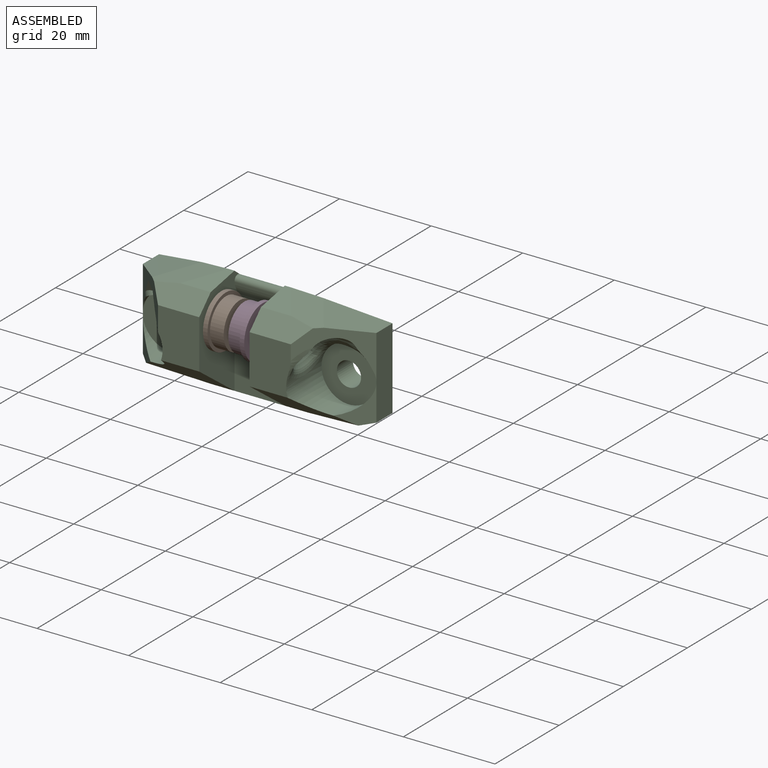
[diagram: assembled view]
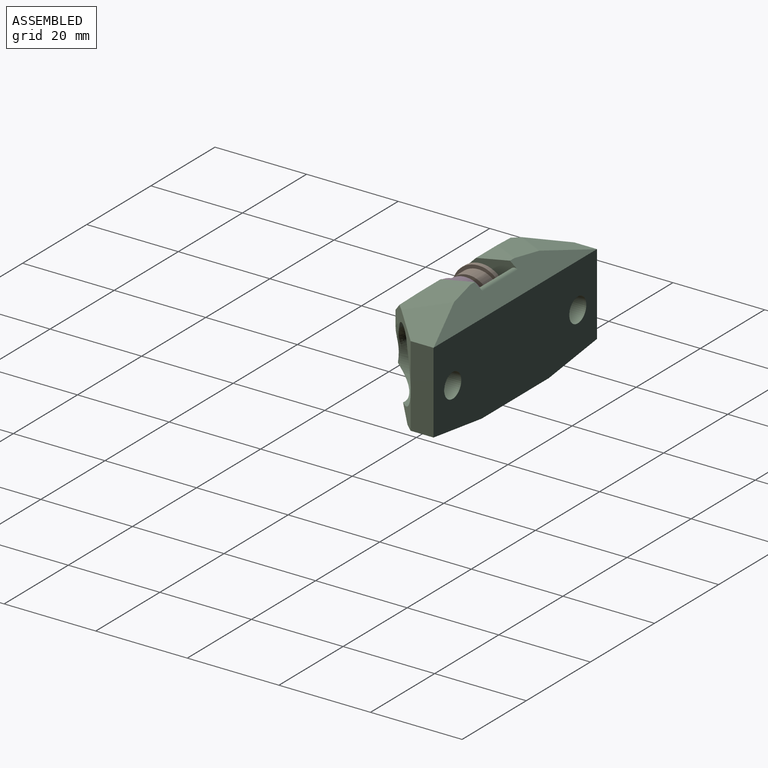
[diagram: assembled view, second angle]
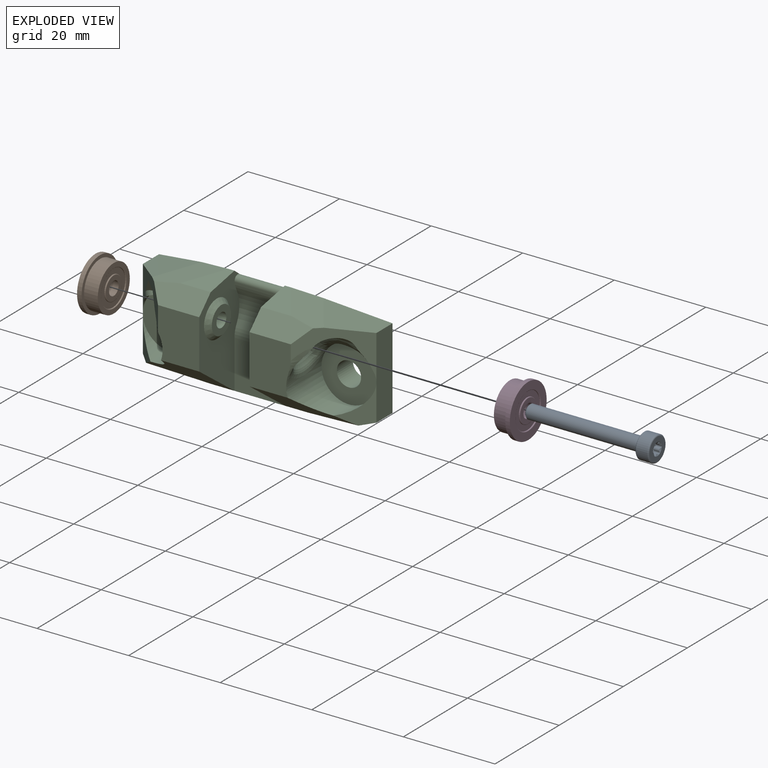
[diagram: exploded view]
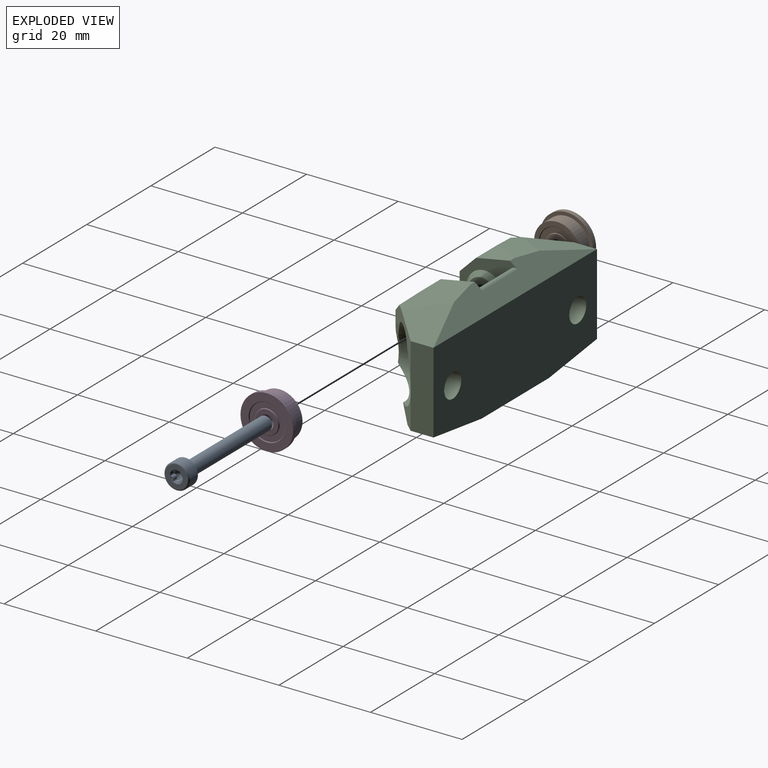
[diagram: exploded view, second angle]
ASSEMBLY  parts=4 mates=3
PART A: 30 faces, bbox 28x6x6 mm
  f0: plane 5.07x5.07mm, normal (1,0,0), area 10mm2, adj f1,f26
  f1: cone r=2.75mm half-angle=45deg, axis (-1,0,0), area 5mm2, adj f0,f2
  f2: cylinder r=2.75mm len=5.5mm, axis (1,0,0), area 42.9mm2, adj f1,f3
  f3: torus R=2.45mm, axis (1,0,0), area 7.8mm2, adj f2,f4
  f4: plane 4.9x4.9mm, normal (-1,0,0), area 12.7mm2, adj f3,f5,f6,f7,f8,f9,f10
  f5: cone r=1.4mm half-angle=60deg, axis (-1,0,0), area 0.3mm2, adj f4,f12,f14,f23
  f6: cone r=1.4mm half-angle=60deg, axis (-1,0,0), area 0.3mm2, adj f4,f13,f14,f16
  f7: cone r=1.4mm half-angle=60deg, axis (-1,0,0), area 0.3mm2, adj f4,f15,f16,f18
  f8: cone r=1.4mm half-angle=60deg, axis (-1,0,0), area 0.3mm2, adj f4,f17,f18,f20
  f9: cone r=1.4mm half-angle=60deg, axis (-1,0,0), area 0.3mm2, adj f4,f19,f20,f22
  f10: cone r=1.4mm half-angle=60deg, axis (-1,0,0), area 0.3mm2, adj f4,f21,f22,f23
  f11: cone r=1.4mm half-angle=60deg, axis (-1,0,0), area 5.2mm2, adj f12,f13,f14,f15,f16,f17,f18,f19
  f12: cylinder r=0.49mm len=1.39mm, axis (-1,0,0), area 1mm2, adj f5,f11,f14,f23
  f13: cylinder r=0.49mm len=1.39mm, axis (-1,0,0), area 1mm2, adj f6,f11,f14,f16
  f14: cylinder r=0.28mm len=1.38mm, axis (-1,0,0), area 1mm2, adj f5,f6,f11,f12,f13
  f15: cylinder r=0.49mm len=1.39mm, axis (-1,0,0), area 1mm2, adj f7,f11,f16,f18
  f16: cylinder r=0.28mm len=1.38mm, axis (-1,0,0), area 1mm2, adj f6,f7,f11,f13,f15
  f17: cylinder r=0.49mm len=1.39mm, axis (-1,0,0), area 1mm2, adj f8,f11,f18,f20
  f18: cylinder r=0.28mm len=1.38mm, axis (-1,0,0), area 1mm2, adj f7,f8,f11,f15,f17
  f19: cylinder r=0.49mm len=1.39mm, axis (-1,0,0), area 1mm2, adj f9,f11,f20,f22
  f20: cylinder r=0.28mm len=1.38mm, axis (-1,0,0), area 1mm2, adj f8,f9,f11,f17,f19
  f21: cylinder r=0.49mm len=1.39mm, axis (-1,0,0), area 1mm2, adj f10,f11,f22,f23
  f22: cylinder r=0.28mm len=1.38mm, axis (-1,0,0), area 1mm2, adj f9,f10,f11,f19,f21
  f23: cylinder r=0.28mm len=1.38mm, axis (-1,0,0), area 1mm2, adj f5,f10,f11,f12,f21
  f24: torus R=1.6mm, axis (1,0,0), area 0.4mm2, adj f25,f29
  f25: cone r=1.51mm half-angle=26deg, axis (-1,0,0), area 4.6mm2, adj f24,f26
  f26: torus R=1.8mm, axis (1,0,0), area 1.2mm2, adj f0,f25
  f27: plane 2.39x2.39mm, normal (1,0,0), area 4.5mm2, adj f28
  f28: cone r=1.5mm half-angle=45deg, axis (-1,0,0), area 3.7mm2, adj f27,f29
  f29: cylinder r=1.5mm len=24.18mm, axis (1,0,0), area 227.9mm2, adj f24,f28
PART B: 18 faces, bbox 11.5x11.5x4 mm
  f0: plane 5x5mm, normal (0,0,-1), area 12.6mm2, adj f5,f14
  f1: plane 5x5mm, normal (0,0,1), area 12.6mm2, adj f5,f16
  f2: cylinder r=5.75mm len=11.5mm, axis (0,0,-1), area 36.1mm2, adj f3,f4
  f3: plane 11.5x11.5mm, normal (0,0,1), area 25.3mm2, adj f2,f6
  f4: plane 11.5x11.5mm, normal (0,0,-1), area 53.6mm2, adj f2,f15
  f5: cylinder r=1.5mm len=4mm, axis (0,0,-1), area 37.7mm2, adj f0,f1
  f6: cylinder r=5mm len=10mm, axis (0,0,-1), area 94.2mm2, adj f3,f7
  f7: plane 10x10mm, normal (0,0,1), area 28.3mm2, adj f6,f17
  f8: cylinder r=2.62mm len=5.25mm, axis (0,0,1), area 2.1mm2, adj f10,f16
  f9: cylinder r=3.88mm len=7.75mm, axis (0,0,1), area 3mm2, adj f10,f17
  f10: plane 7.75x7.75mm, normal (0,0,1), area 25.5mm2, adj f8,f9
  f11: cylinder r=2.62mm len=5.25mm, axis (0,0,1), area 2.1mm2, adj f13,f14
  f12: cylinder r=3.88mm len=7.75mm, axis (0,0,1), area 3mm2, adj f13,f15
  f13: plane 7.75x7.75mm, normal (0,0,-1), area 25.5mm2, adj f11,f12
  f14: torus R=2.5mm, axis (0,0,1), area 3.2mm2, adj f0,f11
  f15: torus R=4mm, axis (0,0,1), area 4.8mm2, adj f4,f12
  f16: torus R=2.5mm, axis (0,0,1), area 3.2mm2, adj f1,f8
  f17: torus R=4mm, axis (0,0,1), area 4.8mm2, adj f7,f9
PART C: 59 faces, bbox 56x20.2x26.1 mm
  f0: cylinder r=6mm len=2.62mm, axis (0,-1,0), area 0.5mm2, adj f1,f56,f58
  f1: plane 11.75x11.19mm, normal (0.71,-0.71,0), area 52.1mm2, adj f0,f2,f50,f51,f52,f53,f54,f55
  f2: bspline ~12.73x7.01mm, area 9.1mm2, adj f1,f3,f5,f49,f50,f55
  f3: bspline ~11.65x7.82mm, area 52mm2, adj f2,f4,f5,f55
  f4: bspline ~7.26x5.17mm, area 21.2mm2, adj f3,f55,f56,f58
  f5: cylinder r=6mm len=12mm, axis (0,-1,0), area 114.2mm2, adj f2,f3,f6,f49,f58
  f6: plane 10.68x7.89mm, normal (0.71,-0.71,0), area 23.2mm2, adj f5,f7,f49,f54
  f7: plane 15x7.32mm, normal (0.13,0,-0.99), area 93.1mm2, adj f6,f8,f48,f49,f54
  f8: plane 51x19.72mm, normal (0,1,0), area 931.7mm2, adj f7,f9,f43,f44,f45,f46,f47,f48
  f9: cylinder r=2.65mm len=5.3mm, axis (0,-1,0), area 83.3mm2, adj f8,f10
  f10: plane 12x12mm, normal (0,-1,0), area 91mm2, adj f9,f11
  f11: cylinder r=6mm len=12mm, axis (0,-1,0), area 171.4mm2, adj f10,f12,f36,f37,f38,f39,f40,f41
  f12: bspline ~4.5x3.01mm, area 4mm2, adj f11,f13,f36,f40
  f13: plane 10.61x3.61mm, normal (0,0.87,-0.5), area 28.4mm2, adj f12,f14,f15,f35,f40
  f14: plane 5.73x3.61mm, normal (0,0.87,0.5), area 12.5mm2, adj f13,f15,f36,f37
  f15: cone r=1.55mm half-angle=82.4deg, axis (-1,0,0), area 23.7mm2, adj f13,f14,f16,f34,f35,f37,f38
  f16: cylinder r=1.55mm len=4mm, axis (1,0,0), area 39mm2, adj f15,f17
  f17: plane 6x6mm, normal (1,0,0), area 20.7mm2, adj f16,f18
  f18: cone r=3mm half-angle=45deg, axis (-1,0,0), area 31.1mm2, adj f17,f19
  f19: plane 23.71x12.66mm, normal (1,0,0), area 160.1mm2, adj f18,f20,f27,f28,f29,f30,f31,f33
  f20: cylinder r=1mm len=11mm, axis (1,0,0), area 26.1mm2, adj f19,f21,f27,f45
  f21: plane 23.71x12.66mm, normal (-1,0,0), area 160.1mm2, adj f20,f22,f23,f27,f28,f29,f30,f45
  f22: plane 7.41x6.62mm, normal (0,-0.19,0.98), area 30mm2, adj f21,f45,f51,f52
  f23: cone r=3mm half-angle=45deg, axis (1,0,0), area 31.1mm2, adj f21,f24
  f24: plane 6x6mm, normal (-1,0,0), area 20.7mm2, adj f23,f25
  f25: cylinder r=1.55mm len=4mm, axis (1,0,0), area 39mm2, adj f24,f26
  f26: cone r=1.55mm half-angle=82.4deg, axis (1,0,0), area 20.9mm2, adj f25,f55
  f27: cylinder r=5mm len=11mm, axis (1,0,0), area 20.6mm2, adj f19,f20,f21,f28
  f28: cylinder r=7mm len=11mm, axis (1,0,0), area 77.8mm2, adj f19,f21,f27,f29
  f29: cylinder r=5mm len=11mm, axis (1,0,0), area 27.8mm2, adj f19,f21,f28,f30
  f30: plane 11x10.51mm, normal (0,-1,0), area 115.6mm2, adj f19,f21,f29,f49
  f31: plane 11.83x3.59mm, normal (0,-0.71,0.71), area 51.6mm2, adj f19,f32,f33,f40,f42
  f32: plane 11.91x9.1mm, normal (-0.13,-0.1,0.99), area 58.6mm2, adj f31,f33,f40,f45,f46
  f33: plane 7.41x6.62mm, normal (0,-0.19,0.98), area 30mm2, adj f19,f31,f32,f45
  f34: plane 16.05x4.77mm, normal (0,-0.87,-0.5), area 43.9mm2, adj f15,f35,f38,f39,f40
  f35: plane 13.16x3.41mm, normal (0,0,-1), area 35.9mm2, adj f13,f15,f34,f40
  f36: bspline ~4.39x3.32mm, area 7mm2, adj f11,f12,f14,f37
  f37: plane 7.03x6.88mm, normal (0,0,1), area 21.1mm2, adj f11,f14,f15,f36,f38
  f38: plane 13.73x3.61mm, normal (0,-0.87,0.5), area 25.9mm2, adj f11,f15,f34,f37,f39
  f39: cylinder r=3mm len=2.65mm, axis (-0.45,0.45,0.77), area 2.2mm2, adj f11,f34,f38,f40
  f40: plane 11.58x11.03mm, normal (-0.71,-0.71,0), area 61.9mm2, adj f11,f12,f13,f31,f32,f34,f35,f39
  f41: plane 8.31x5.52mm, normal (-0.71,-0.71,0), area 23.2mm2, adj f11,f43,f44,f49
  f42: plane 10.72x9mm, normal (0,-1,0), area 92.5mm2, adj f11,f19,f31,f40,f49
  f43: plane 17.7x5mm, normal (-1,0,0), area 88.5mm2, adj f8,f40,f41,f44,f46
  f44: plane 15x7.32mm, normal (-0.13,0,-0.99), area 93.1mm2, adj f8,f41,f43,f48,f49
  f45: plane 50.86x5mm, normal (0,0.62,0.78), area 202.3mm2, adj f8,f19,f20,f21,f22,f32,f33,f46
  f46: plane 12.22x11.75mm, normal (-0.26,0,0.97), area 77.7mm2, adj f8,f32,f40,f43,f45
  f47: cylinder r=2.65mm len=5.3mm, axis (0,-1,0), area 83.3mm2, adj f8,f58
  f48: plane 21x4.99mm, normal (0,0,-1), area 104.8mm2, adj f7,f8,f44,f49
  f49: plane 48.53x13.18mm, normal (0,-0.59,-0.81), area 326.2mm2, adj f2,f5,f6,f7,f11,f19,f21,f30
  f50: plane 10.72x9mm, normal (0,-1,0), area 91.8mm2, adj f1,f2,f21,f49,f51
  f51: plane 11.83x3.59mm, normal (0,-0.71,0.71), area 51.6mm2, adj f1,f21,f22,f50,f52
  f52: plane 11.91x9.1mm, normal (0.13,-0.1,0.99), area 58.6mm2, adj f1,f22,f45,f51,f53
  f53: plane 12.22x11.75mm, normal (0.26,0,0.97), area 77.7mm2, adj f1,f8,f45,f52,f54
  f54: plane 17.7x5mm, normal (1,0,0), area 88.5mm2, adj f1,f6,f7,f8,f53
  f55: cylinder r=3mm len=14.13mm, axis (-1,0,0), area 116mm2, adj f1,f2,f3,f4,f26,f56
  f56: bspline ~11.98x6.03mm, area 23.5mm2, adj f0,f1,f4,f55,f57,f58
  f57: cylinder r=6mm len=2.94mm, axis (0,-1,0), area 0mm2, adj f56,f58
  f58: plane 12.04x12.04mm, normal (0,-1,0), area 91.1mm2, adj f0,f4,f5,f47,f56,f57
PART D: same geometry as B
PLACE A rot(axis=(0,1,0),180deg) t=(26.53,-4.42,-15.71)mm
PLACE B rot(axis=(0.58,0.58,0.58),120deg) t=(13.33,-4.42,-15.71)mm
PLACE C t=(-7.67,6.08,-8.32)mm
PLACE D rot(axis=(0.71,0,-0.71),180deg) t=(22.33,-4.42,-15.71)mm
MATE fastened A.f1 <-> C.f15  axis (-1,0,0) through (26.53,-4.42,-15.71)mm
MATE revolute D.f5 <-> C.f15  axis (1,0,0) through (22.33,-4.42,-15.71)mm
MATE fastened B.f5 <-> D.f5  axis (1,0,0) through (17.33,-4.42,-15.71)mm
